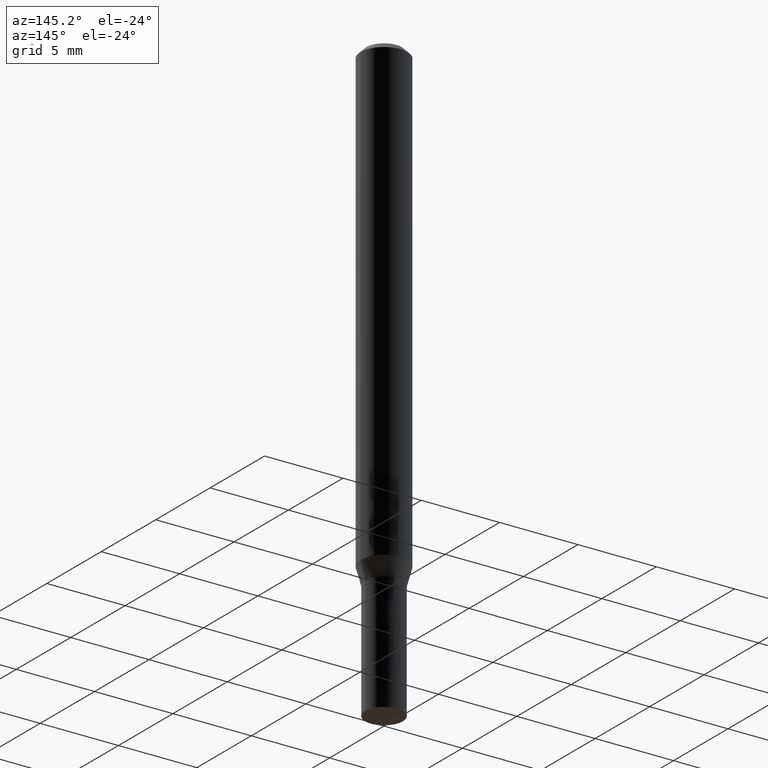
[diagram: clean part render]
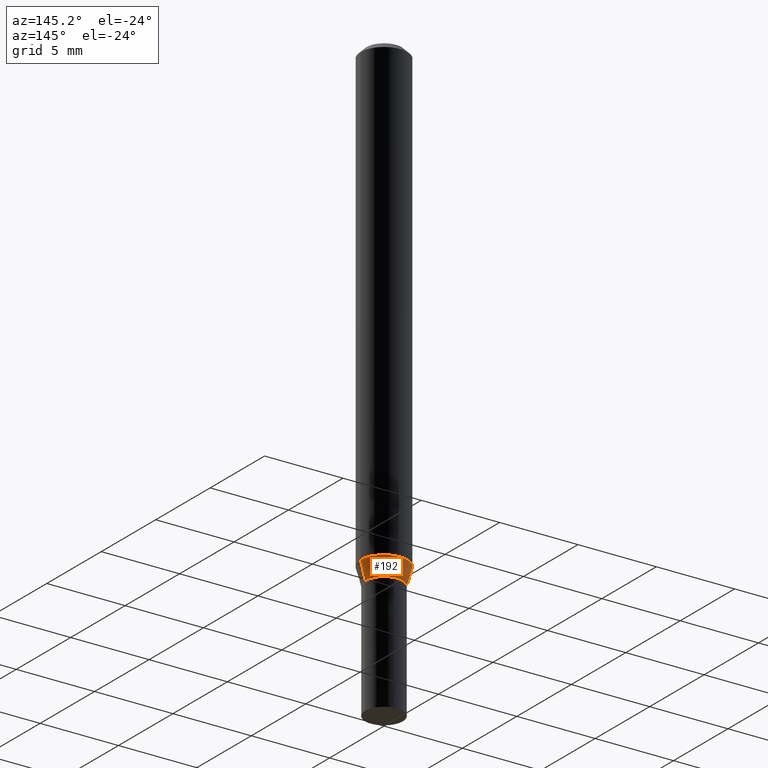
[diagram: same view with one face highlighted and labeled with its STEP entity id]
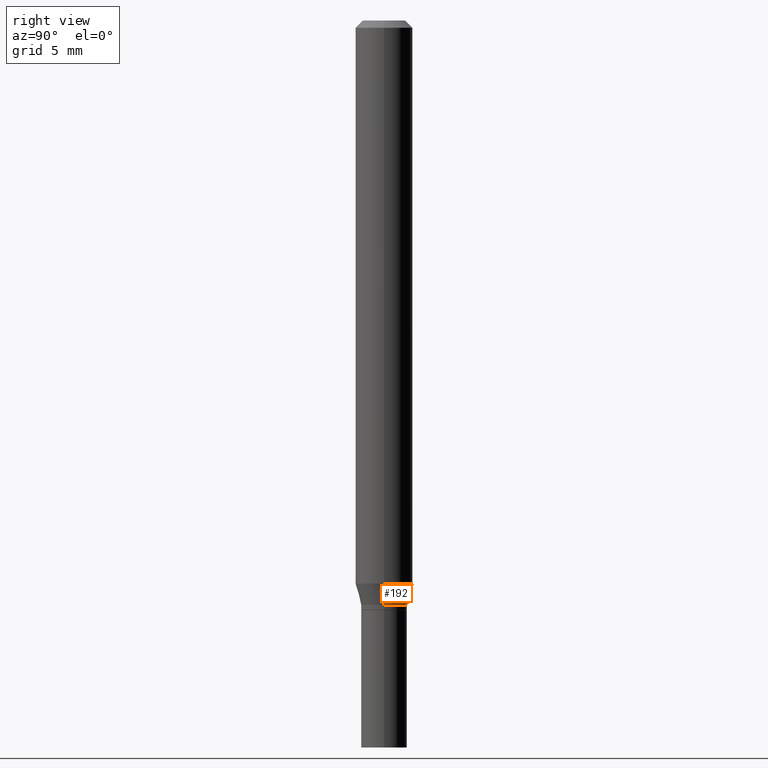
[diagram: same view with one face highlighted and labeled with its STEP entity id]
A machine part, auxiliary view. The second image highlights one B-rep face of the part: STEP entity #192.
A second angle (right view) of the same face is appended — the face is thin or edge-on in the first view.
In plain terms, the highlighted conical surface has half-angle 15 deg.
Its self-contained STEP definition (entity closure, byte-faithful):
#1 = DIRECTION ( 'NONE',  ( -2.445468806185136597E-29, 3.491481338843145583E-15, 1.000000000000000000 ) ) ;
#12 = DIRECTION ( 'NONE',  ( -2.445468806185136597E-29, 3.491481338843145583E-15, 1.000000000000000000 ) ) ;
#15 = CARTESIAN_POINT ( 'NONE',  ( -0.04725000000000005584, -3.874995051998187196E-15, -1.206000000000000183 ) ) ;
#17 = EDGE_CURVE ( 'NONE', #245, #123, #254, .T. ) ;
#23 = ORIENTED_EDGE ( 'NONE', *, *, #17, .F. ) ;
#32 = ORIENTED_EDGE ( 'NONE', *, *, #401, .T. ) ;
#47 = AXIS2_PLACEMENT_3D ( 'NONE', #379, #347, #462 ) ;
#63 = CARTESIAN_POINT ( 'NONE',  ( 0.05904999999999999832, -4.469311888909361635E-15, -1.161961800470687534 ) ) ;
#123 = VERTEX_POINT ( 'NONE', #466 ) ;
#133 = CIRCLE ( 'NONE', #172, 0.04725000000000005584 ) ;
#137 = DIRECTION ( 'NONE',  ( 1.000000000000000000, -6.982962677686273021E-15, 0.000000000000000000 ) ) ;
#158 = FACE_OUTER_BOUND ( 'NONE', #260, .T. ) ;
#172 = AXIS2_PLACEMENT_3D ( 'NONE', #258, #12, #403 ) ;
#174 = CARTESIAN_POINT ( 'NONE',  ( 2.841541337029784327E-29, -4.056967942791988293E-15, -1.161961800470687534 ) ) ;
#192 = ADVANCED_FACE ( 'NONE', ( #158 ), #390, .T. ) ;
#207 = CARTESIAN_POINT ( 'NONE',  ( -0.04725000000000005584, -3.756193754661917998E-15, -1.206000000000000183 ) ) ;
#220 = CARTESIAN_POINT ( 'NONE',  ( 0.04725000000000005584, -4.540671481165510643E-15, -1.206000000000000183 ) ) ;
#245 = VERTEX_POINT ( 'NONE', #63 ) ;
#254 = CIRCLE ( 'NONE', #343, 0.05904999999999999832 ) ;
#257 = DIRECTION ( 'NONE',  ( 0.2588190451025202954, 1.565188264969630251E-15, 0.9659258262890684232 ) ) ;
#258 = CARTESIAN_POINT ( 'NONE',  ( 2.949235380259274955E-29, -4.210726494644834635E-15, -1.206000000000000183 ) ) ;
#260 = EDGE_LOOP ( 'NONE', ( #297, #32, #23, #301 ) ) ;
#263 = VECTOR ( 'NONE', #257, 39.37007874015748143 ) ;
#296 = LINE ( 'NONE', #438, #263 ) ;
#297 = ORIENTED_EDGE ( 'NONE', *, *, #411, .T. ) ;
#301 = ORIENTED_EDGE ( 'NONE', *, *, #359, .F. ) ;
#306 = VERTEX_POINT ( 'NONE', #220 ) ;
#343 = AXIS2_PLACEMENT_3D ( 'NONE', #174, #1, #137 ) ;
#347 = DIRECTION ( 'NONE',  ( -2.445468806185136597E-29, 3.491481338843145583E-15, 1.000000000000000000 ) ) ;
#359 = EDGE_CURVE ( 'NONE', #306, #245, #296, .T. ) ;
#379 = CARTESIAN_POINT ( 'NONE',  ( 2.949235380259274955E-29, -4.210726494644834635E-15, -1.206000000000000183 ) ) ;
#390 = CONICAL_SURFACE ( 'NONE', #47, 0.04725000000000005584, 0.2617993877991489637 ) ;
#401 = EDGE_CURVE ( 'NONE', #418, #123, #404, .T. ) ;
#403 = DIRECTION ( 'NONE',  ( 1.000000000000000000, -6.982962677686257244E-15, 0.000000000000000000 ) ) ;
#404 = LINE ( 'NONE', #15, #445 ) ;
#411 = EDGE_CURVE ( 'NONE', #306, #418, #133, .T. ) ;
#418 = VERTEX_POINT ( 'NONE', #207 ) ;
#438 = CARTESIAN_POINT ( 'NONE',  ( 0.04725000000000005584, -4.540671481165510643E-15, -1.206000000000000183 ) ) ;
#441 = DIRECTION ( 'NONE',  ( -0.2588190451025202954, 5.211531920934543942E-15, 0.9659258262890684232 ) ) ;
#445 = VECTOR ( 'NONE', #441, 39.37007874015748143 ) ;
#462 = DIRECTION ( 'NONE',  ( 1.000000000000000000, -6.982962677686257244E-15, 0.000000000000000000 ) ) ;
#466 = CARTESIAN_POINT ( 'NONE',  ( -0.05904999999999999832, -3.637392457325649589E-15, -1.161961800470687534 ) ) ;